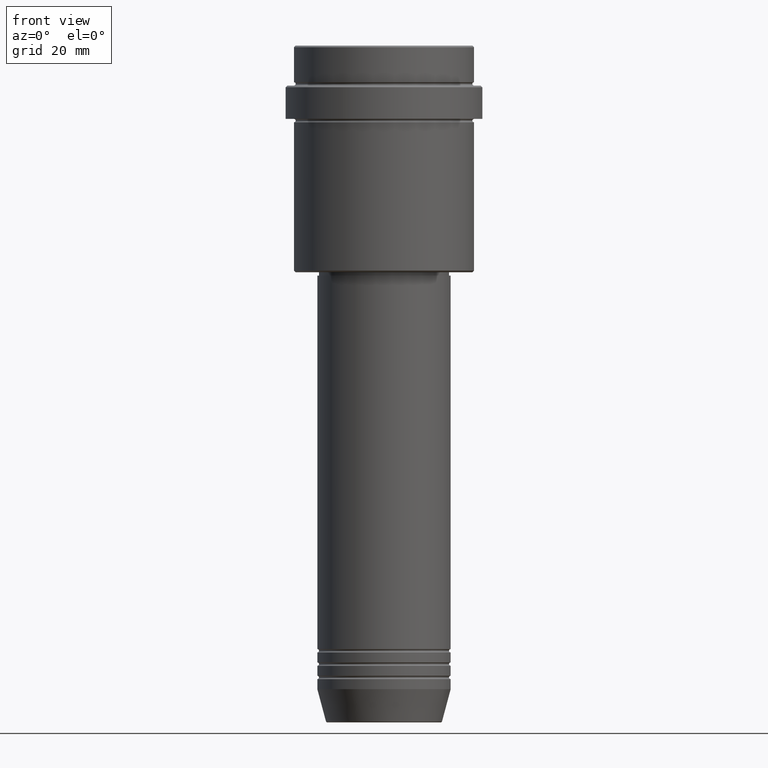
[diagram: clean part render]
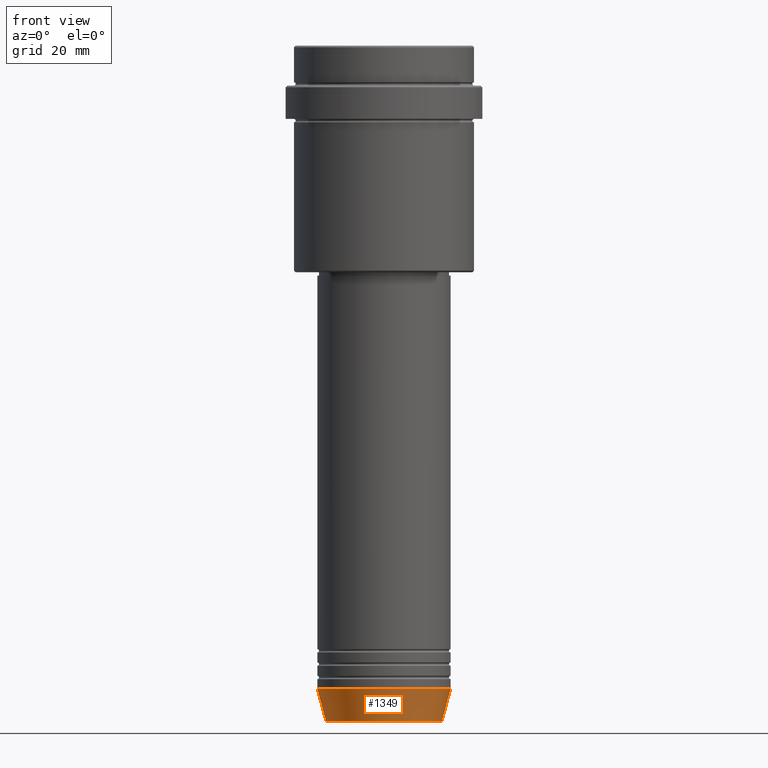
[diagram: same view with one face highlighted and labeled with its STEP entity id]
A machine part, front view. The second image highlights one B-rep face of the part: STEP entity #1349.
In plain terms, the highlighted conical surface has half-angle 15 deg.
Its self-contained STEP definition (entity closure, byte-faithful):
#50 = EDGE_CURVE ( 'NONE', #1289, #112, #824, .T. ) ;
#69 = DIRECTION ( 'NONE',  ( 1.000000000000000000, 0.000000000000000000, 0.000000000000000000 ) ) ;
#104 = ORIENTED_EDGE ( 'NONE', *, *, #1396, .F. ) ;
#107 = AXIS2_PLACEMENT_3D ( 'NONE', #1284, #303, #69 ) ;
#112 = VERTEX_POINT ( 'NONE', #189 ) ;
#189 = CARTESIAN_POINT ( 'NONE',  ( -20.00000000000000000, 2.449293598294706513E-15, -193.0000000000000000 ) ) ;
#235 = EDGE_CURVE ( 'NONE', #831, #887, #1090, .T. ) ;
#293 = CIRCLE ( 'NONE', #1322, 20.00000000000000000 ) ;
#303 = DIRECTION ( 'NONE',  ( -0.000000000000000000, -0.000000000000000000, 1.000000000000000000 ) ) ;
#387 = CARTESIAN_POINT ( 'NONE',  ( -17.41980749484382329, 2.291302373663531915E-15, -202.6294095225512706 ) ) ;
#419 = FACE_OUTER_BOUND ( 'NONE', #973, .T. ) ;
#513 = CARTESIAN_POINT ( 'NONE',  ( -20.00000000000000000, 2.449293598294706513E-15, -193.0000000000000000 ) ) ;
#533 = DIRECTION ( 'NONE',  ( -0.2588190451025211836, 3.169619151431770488E-17, 0.9659258262890680902 ) ) ;
#639 = CARTESIAN_POINT ( 'NONE',  ( 20.00000000000000000, 0.000000000000000000, -193.0000000000000000 ) ) ;
#646 = DIRECTION ( 'NONE',  ( 0.2588190451025211836, 0.000000000000000000, 0.9659258262890680902 ) ) ;
#824 = LINE ( 'NONE', #513, #886 ) ;
#831 = VERTEX_POINT ( 'NONE', #1022 ) ;
#855 = DIRECTION ( 'NONE',  ( -0.000000000000000000, -0.000000000000000000, 1.000000000000000000 ) ) ;
#886 = VECTOR ( 'NONE', #533, 1000.000000000000114 ) ;
#887 = VERTEX_POINT ( 'NONE', #639 ) ;
#914 = CIRCLE ( 'NONE', #1386, 17.41980749484382329 ) ;
#921 = ORIENTED_EDGE ( 'NONE', *, *, #50, .F. ) ;
#949 = DIRECTION ( 'NONE',  ( -0.000000000000000000, -0.000000000000000000, 1.000000000000000000 ) ) ;
#973 = EDGE_LOOP ( 'NONE', ( #921, #1165, #1414, #104 ) ) ;
#1021 = VECTOR ( 'NONE', #646, 1000.000000000000114 ) ;
#1022 = CARTESIAN_POINT ( 'NONE',  ( 17.41980749484382329, 0.000000000000000000, -202.6294095225512706 ) ) ;
#1076 = CONICAL_SURFACE ( 'NONE', #107, 20.00000000000000000, 0.2617993877991499074 ) ;
#1090 = LINE ( 'NONE', #1190, #1021 ) ;
#1153 = DIRECTION ( 'NONE',  ( 1.000000000000000000, 0.000000000000000000, 0.000000000000000000 ) ) ;
#1165 = ORIENTED_EDGE ( 'NONE', *, *, #1412, .T. ) ;
#1170 = CARTESIAN_POINT ( 'NONE',  ( 0.000000000000000000, 0.000000000000000000, -202.6294095225512706 ) ) ;
#1190 = CARTESIAN_POINT ( 'NONE',  ( 20.00000000000000000, 0.000000000000000000, -193.0000000000000000 ) ) ;
#1284 = CARTESIAN_POINT ( 'NONE',  ( 0.000000000000000000, 0.000000000000000000, -193.0000000000000000 ) ) ;
#1289 = VERTEX_POINT ( 'NONE', #387 ) ;
#1290 = DIRECTION ( 'NONE',  ( 1.000000000000000000, 0.000000000000000000, 0.000000000000000000 ) ) ;
#1322 = AXIS2_PLACEMENT_3D ( 'NONE', #1400, #855, #1153 ) ;
#1349 = ADVANCED_FACE ( 'NONE', ( #419 ), #1076, .T. ) ;
#1386 = AXIS2_PLACEMENT_3D ( 'NONE', #1170, #949, #1290 ) ;
#1396 = EDGE_CURVE ( 'NONE', #112, #887, #293, .T. ) ;
#1400 = CARTESIAN_POINT ( 'NONE',  ( 0.000000000000000000, 0.000000000000000000, -193.0000000000000000 ) ) ;
#1412 = EDGE_CURVE ( 'NONE', #1289, #831, #914, .T. ) ;
#1414 = ORIENTED_EDGE ( 'NONE', *, *, #235, .T. ) ;